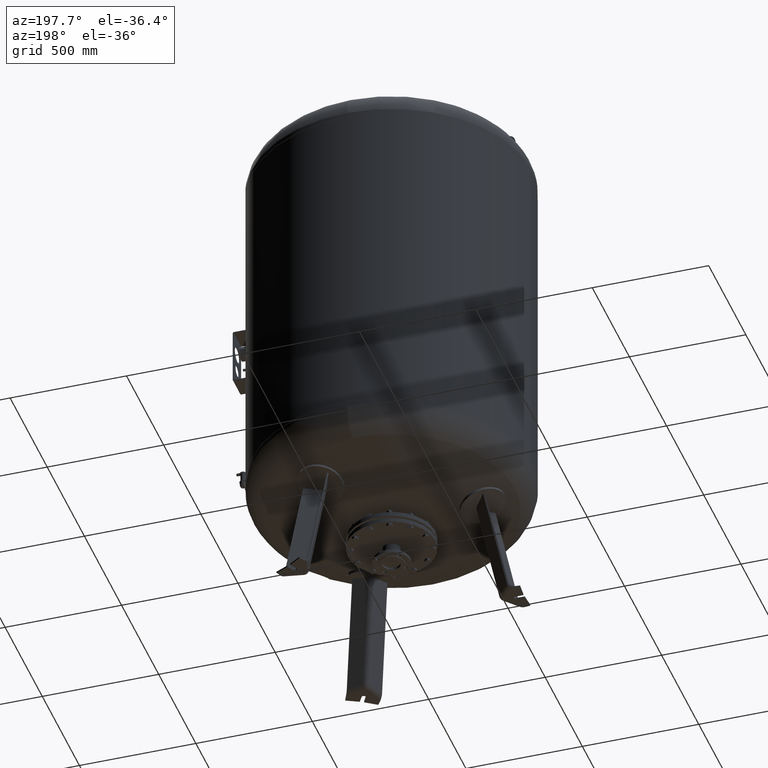
[diagram: clean part render]
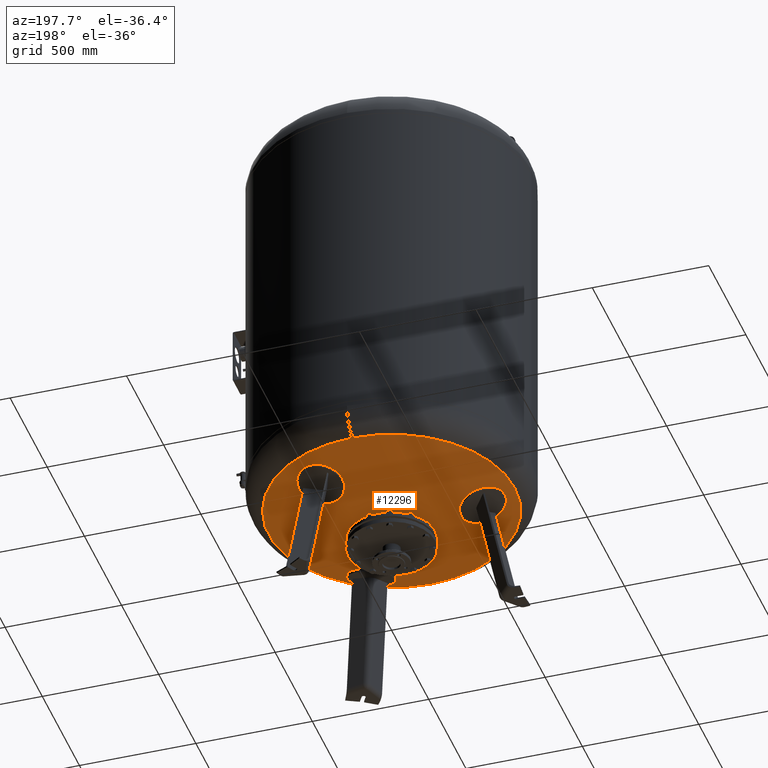
[diagram: same view with one face highlighted and labeled with its STEP entity id]
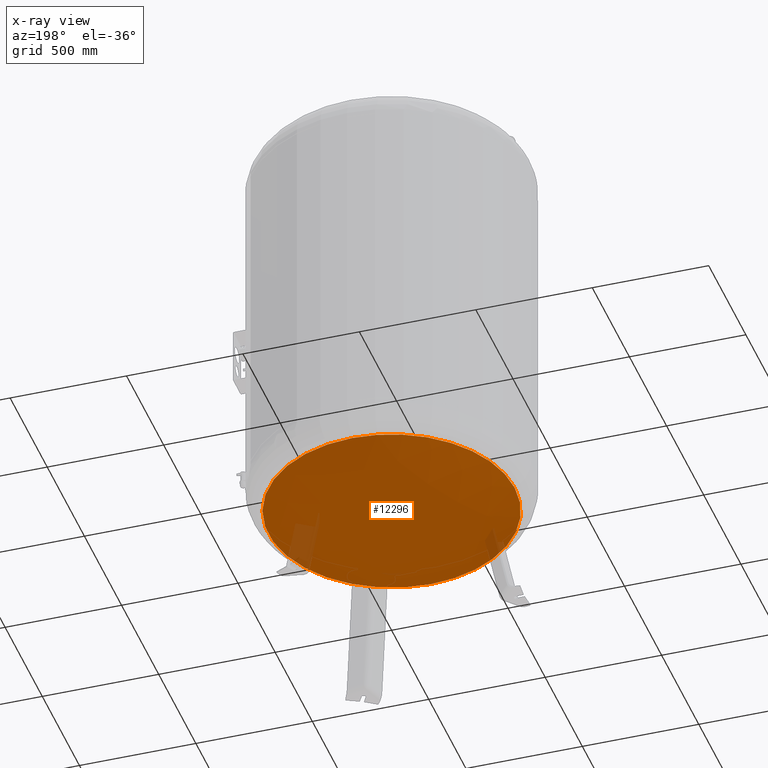
[diagram: x-ray of the same camera — body ghosted, the highlighted face saturated]
A machine part, auxiliary view. The second image highlights one B-rep face of the part: STEP entity #12296.
The next image is the same camera in x-ray: the body ghosted, the highlighted face saturated — about 4% of this face is hidden behind the body in this view.
In plain terms, the highlighted spherical surface has radius 1207 mm.
Its self-contained STEP definition (entity closure, byte-faithful):
#12235=CARTESIAN_POINT('',(-5.387807E-014,-528.621296296296240,560.915429516194880));
#12236=VERTEX_POINT('',#12235);
#12252=CARTESIAN_POINT('',(-1.186134E-013,528.621296296296240,560.915429516195100));
#12253=VERTEX_POINT('',#12252);
#12261=CARTESIAN_POINT('',(-528.621296296296240,-2.239550E-014,560.915429516194990));
#12262=VERTEX_POINT('',#12261);
#12263=CARTESIAN_POINT('',(-1.834112E-014,-2.239550E-014,560.915429516194990));
#12264=DIRECTION('',(0.0,0.0,1.0));
#12265=DIRECTION('',(-1.0,0.0,0.0));
#12266=AXIS2_PLACEMENT_3D('',#12263,#12264,#12265);
#12267=CIRCLE('',#12266,528.621296296296240);
#12268=EDGE_CURVE('',#12253,#12262,#12267,.T.);
#12270=CARTESIAN_POINT('',(-1.834112E-014,-2.239550E-014,560.915429516194990));
#12271=DIRECTION('',(0.0,0.0,1.0));
#12272=DIRECTION('',(-1.0,0.0,0.0));
#12273=AXIS2_PLACEMENT_3D('',#12270,#12271,#12272);
#12274=CIRCLE('',#12273,528.621296296296240);
#12275=EDGE_CURVE('',#12262,#12236,#12274,.T.);
#12280=CARTESIAN_POINT('',(-2.715353E-013,-2.217223E-013,1646.0));
#12281=DIRECTION('',(0.0,-1.0,0.0));
#12282=DIRECTION('',(1.0,0.0,0.0));
#12283=AXIS2_PLACEMENT_3D('',#12280,#12281,#12282);
#12284=SPHERICAL_SURFACE('',#12283,1207.000000000000200);
#12285=ORIENTED_EDGE('',*,*,#12275,.F.);
#12286=ORIENTED_EDGE('',*,*,#12268,.F.);
#12287=CARTESIAN_POINT('',(-1.834112E-014,-2.239550E-014,560.915429516194990));
#12288=DIRECTION('',(0.0,0.0,1.0));
#12289=DIRECTION('',(-1.0,0.0,0.0));
#12290=AXIS2_PLACEMENT_3D('',#12287,#12288,#12289);
#12291=CIRCLE('',#12290,528.621296296296240);
#12292=EDGE_CURVE('',#12236,#12253,#12291,.T.);
#12293=ORIENTED_EDGE('',*,*,#12292,.F.);
#12294=EDGE_LOOP('',(#12285,#12286,#12293));
#12295=FACE_OUTER_BOUND('',#12294,.T.);
#12296=ADVANCED_FACE('',(#12295),#12284,.T.);